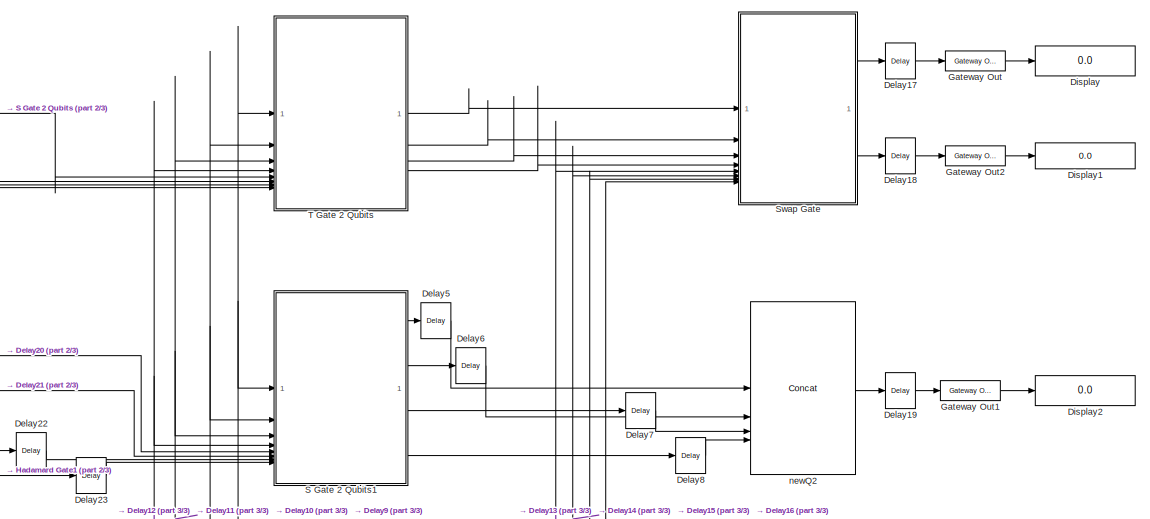
[diagram: root canvas - part 1/3, middle right region]
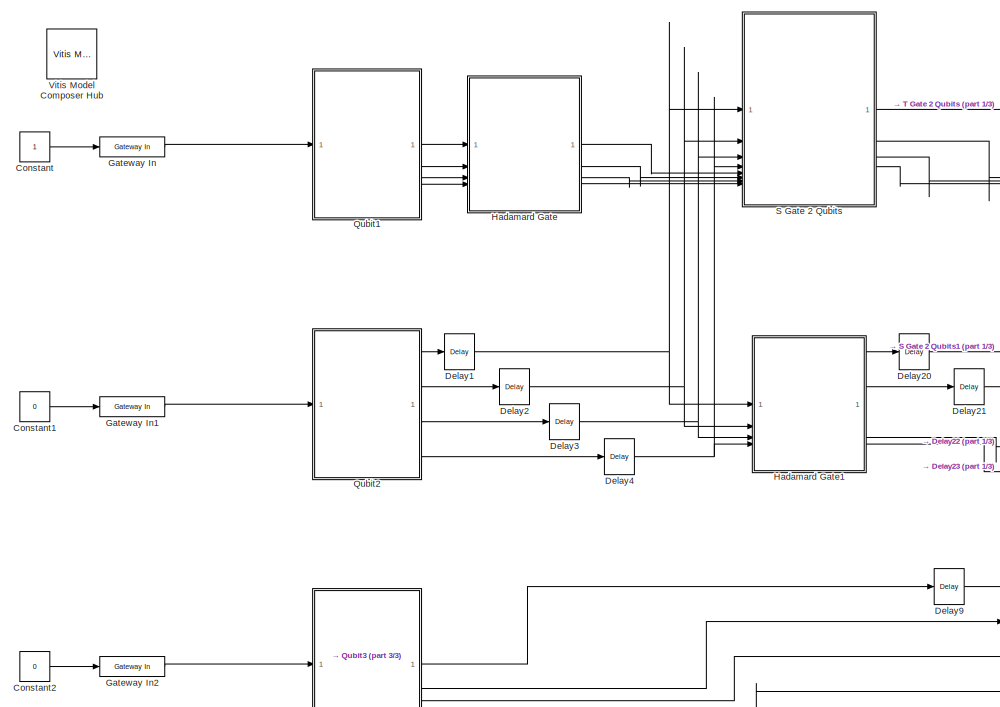
[diagram: root canvas - part 2/3, left side, full height]
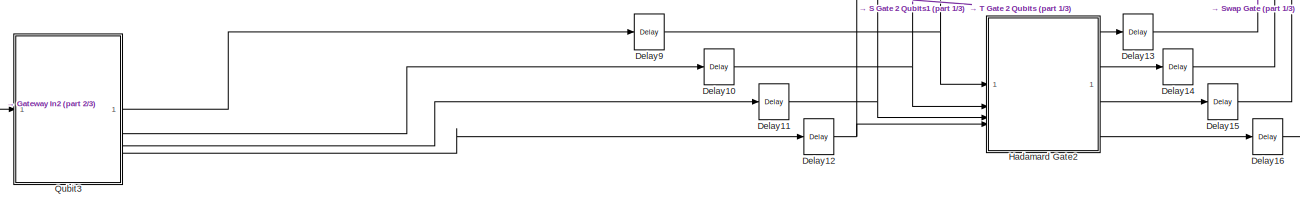
[diagram: root canvas - part 3/3, bottom center region]
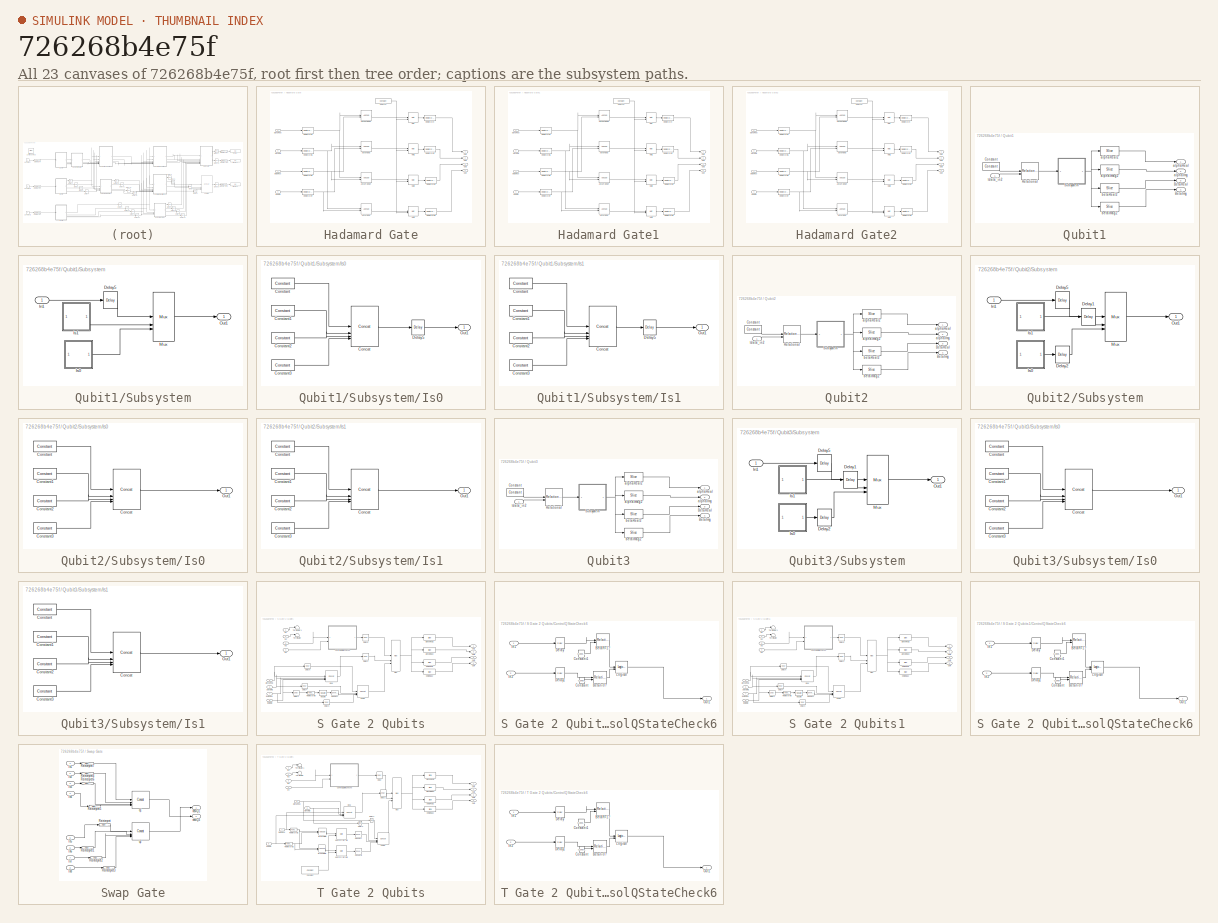
[diagram: thumbnail index - all 23 canvases of the model, root first then tree order]
MODEL slx_726268b4e75f
KIND model
CONFIG AbsTol = auto
CONFIG EnableMultiTasking = off
CONFIG FixedStep = 0.01
CONFIG MaxStep = auto
CONFIG MinStep = auto
CONFIG RelTol = 1e-3
CONFIG SampleTimeConstraint = Unconstrained
CONFIG SolverName = VariableStepAuto
CONFIG StartTime = 0.0
CONFIG StopTime = 30
BLOCK [Constant] Constant
BLOCK [Constant] Constant1
  Value = 0
BLOCK [Constant] Constant2
  Value = 0
BLOCK [Reference] Delay1  REF=hdlBasic/Delay
  SourceBlock = hdlBasic/Delay
  SourceType = Delay Block
BLOCK [Reference] Delay10  REF=hdlBasic/Delay
  SourceBlock = hdlBasic/Delay
  SourceType = Delay Block
BLOCK [Reference] Delay11  REF=hdlBasic/Delay
  SourceBlock = hdlBasic/Delay
  SourceType = Delay Block
BLOCK [Reference] Delay12  REF=hdlBasic/Delay
  SourceBlock = hdlBasic/Delay
  SourceType = Delay Block
BLOCK [Reference] Delay13  REF=hdlBasic/Delay
  SourceBlock = hdlBasic/Delay
  SourceType = Delay Block
BLOCK [Reference] Delay14  REF=hdlBasic/Delay
  SourceBlock = hdlBasic/Delay
  SourceType = Delay Block
BLOCK [Reference] Delay15  REF=hdlBasic/Delay
  SourceBlock = hdlBasic/Delay
  SourceType = Delay Block
BLOCK [Reference] Delay16  REF=hdlBasic/Delay
  SourceBlock = hdlBasic/Delay
  SourceType = Delay Block
BLOCK [Reference] Delay17  REF=hdlBasic/Delay
  SourceBlock = hdlBasic/Delay
  SourceType = Delay Block
BLOCK [Reference] Delay18  REF=hdlBasic/Delay
  SourceBlock = hdlBasic/Delay
  SourceType = Delay Block
BLOCK [Reference] Delay19  REF=hdlBasic/Delay
  SourceBlock = hdlBasic/Delay
  SourceType = Delay Block
BLOCK [Reference] Delay2  REF=hdlBasic/Delay
  SourceBlock = hdlBasic/Delay
  SourceType = Delay Block
BLOCK [Reference] Delay20  REF=hdlBasic/Delay
  SourceBlock = hdlBasic/Delay
  SourceType = Delay Block
BLOCK [Reference] Delay21  REF=hdlBasic/Delay
  SourceBlock = hdlBasic/Delay
  SourceType = Delay Block
BLOCK [Reference] Delay22  REF=hdlBasic/Delay
  SourceBlock = hdlBasic/Delay
  SourceType = Delay Block
BLOCK [Reference] Delay23  REF=hdlBasic/Delay
  SourceBlock = hdlBasic/Delay
  SourceType = Delay Block
BLOCK [Reference] Delay3  REF=hdlBasic/Delay
  SourceBlock = hdlBasic/Delay
  SourceType = Delay Block
BLOCK [Reference] Delay4  REF=hdlBasic/Delay
  SourceBlock = hdlBasic/Delay
  SourceType = Delay Block
BLOCK [Reference] Delay5  REF=hdlBasic/Delay
  SourceBlock = hdlBasic/Delay
  SourceType = Delay Block
BLOCK [Reference] Delay6  REF=hdlBasic/Delay
  SourceBlock = hdlBasic/Delay
  SourceType = Delay Block
BLOCK [Reference] Delay7  REF=hdlBasic/Delay
  SourceBlock = hdlBasic/Delay
  SourceType = Delay Block
BLOCK [Reference] Delay8  REF=hdlBasic/Delay
  SourceBlock = hdlBasic/Delay
  SourceType = Delay Block
BLOCK [Reference] Delay9  REF=hdlBasic/Delay
  SourceBlock = hdlBasic/Delay
  SourceType = Delay Block
BLOCK [Display] Display
  Decimation = 1
  Format = long
BLOCK [Display] Display1
  Decimation = 1
  Format = long
BLOCK [Display] Display2
  Decimation = 1
  Format = long
BLOCK [Reference] Gateway In  REF=hdlBasic/Gateway In
  SourceBlock = hdlBasic/Gateway In
  SourceType = Gateway In Block
BLOCK [Reference] Gateway In1  REF=hdlBasic/Gateway In
  SourceBlock = hdlBasic/Gateway In
  SourceType = Gateway In Block
BLOCK [Reference] Gateway In2  REF=hdlBasic/Gateway In
  SourceBlock = hdlBasic/Gateway In
  SourceType = Gateway In Block
BLOCK [Reference] Gateway Out  REF=hdlBasic/Gateway Out
  SourceBlock = hdlBasic/Gateway Out
  SourceType = Gateway Out Block
BLOCK [Reference] Gateway Out1  REF=hdlBasic/Gateway Out
  SourceBlock = hdlBasic/Gateway Out
  SourceType = Gateway Out Block
BLOCK [Reference] Gateway Out2  REF=hdlBasic/Gateway Out
  SourceBlock = hdlBasic/Gateway Out
  SourceType = Gateway Out Block
BLOCK [SubSystem] Hadamard Gate
BLOCK [Reference] Hadamard Gate/1//sqrt(2)  REF=hdlBasic/Constant
  SourceBlock = hdlBasic/Constant
  SourceType = Constant Block Block
BLOCK [Reference] Hadamard Gate/AlphaI+BetaI  REF=hdlBasic/AddSub
  SourceBlock = hdlBasic/AddSub
  SourceType = Adder/Subtracter Block
BLOCK [Reference] Hadamard Gate/AlphaI-BetaI  REF=hdlBasic/AddSub
  SourceBlock = hdlBasic/AddSub
  SourceType = Adder/Subtracter Block
BLOCK [Reference] Hadamard Gate/AlphaR+BetaR  REF=hdlBasic/AddSub
  SourceBlock = hdlBasic/AddSub
  SourceType = Adder/Subtracter Block
BLOCK [Reference] Hadamard Gate/AlphaR-BetaR  REF=hdlBasic/AddSub
  SourceBlock = hdlBasic/AddSub
  SourceType = Adder/Subtracter Block
BLOCK [Inport] Hadamard Gate/BetaImg
  Port = 4
BLOCK [Inport] Hadamard Gate/BetaReal
  Port = 3
BLOCK [Reference] Hadamard Gate/Mult  REF=hdlBasic/Mult
  SourceBlock = hdlBasic/Mult
  SourceType = Multiplier Block
BLOCK [Reference] Hadamard Gate/Mult1  REF=hdlBasic/Mult
  SourceBlock = hdlBasic/Mult
  SourceType = Multiplier Block
BLOCK [Reference] Hadamard Gate/Mult2  REF=hdlBasic/Mult
  SourceBlock = hdlBasic/Mult
  SourceType = Multiplier Block
BLOCK [Reference] Hadamard Gate/Mult3  REF=hdlBasic/Mult
  SourceBlock = hdlBasic/Mult
  SourceType = Multiplier Block
BLOCK [Outport] Hadamard Gate/Out1
BLOCK [Outport] Hadamard Gate/Out2
  Port = 2
BLOCK [Outport] Hadamard Gate/Out3
  Port = 3
BLOCK [Outport] Hadamard Gate/Out4
  Port = 4
BLOCK [Reference] Hadamard Gate/Reinterpret  REF=hdlBasic/Reinterpret
  SourceBlock = hdlBasic/Reinterpret
  SourceType = Type Reinterpreter Block
BLOCK [Reference] Hadamard Gate/Reinterpret1  REF=hdlBasic/Reinterpret
  SourceBlock = hdlBasic/Reinterpret
  SourceType = Type Reinterpreter Block
BLOCK [Reference] Hadamard Gate/Reinterpret2  REF=hdlBasic/Reinterpret
  SourceBlock = hdlBasic/Reinterpret
  SourceType = Type Reinterpreter Block
BLOCK [Reference] Hadamard Gate/Reinterpret3  REF=hdlBasic/Reinterpret
  SourceBlock = hdlBasic/Reinterpret
  SourceType = Type Reinterpreter Block
BLOCK [Reference] Hadamard Gate/Reinterpret4  REF=hdlBasic/Reinterpret
  SourceBlock = hdlBasic/Reinterpret
  SourceType = Type Reinterpreter Block
BLOCK [Reference] Hadamard Gate/Reinterpret5  REF=hdlBasic/Reinterpret
  SourceBlock = hdlBasic/Reinterpret
  SourceType = Type Reinterpreter Block
BLOCK [Reference] Hadamard Gate/Reinterpret6  REF=hdlBasic/Reinterpret
  SourceBlock = hdlBasic/Reinterpret
  SourceType = Type Reinterpreter Block
BLOCK [Reference] Hadamard Gate/Reinterpret7  REF=hdlBasic/Reinterpret
  SourceBlock = hdlBasic/Reinterpret
  SourceType = Type Reinterpreter Block
BLOCK [Inport] Hadamard Gate/alphaImg
  Port = 2
BLOCK [Inport] Hadamard Gate/alphaReal
BLOCK [SubSystem] Hadamard Gate1
BLOCK [Reference] Hadamard Gate1/1//sqrt(2)  REF=hdlBasic/Constant
  SourceBlock = hdlBasic/Constant
  SourceType = Constant Block Block
BLOCK [Reference] Hadamard Gate1/AlphaI+BetaI  REF=hdlBasic/AddSub
  SourceBlock = hdlBasic/AddSub
  SourceType = Adder/Subtracter Block
BLOCK [Reference] Hadamard Gate1/AlphaI-BetaI  REF=hdlBasic/AddSub
  SourceBlock = hdlBasic/AddSub
  SourceType = Adder/Subtracter Block
BLOCK [Reference] Hadamard Gate1/AlphaR+BetaR  REF=hdlBasic/AddSub
  SourceBlock = hdlBasic/AddSub
  SourceType = Adder/Subtracter Block
BLOCK [Reference] Hadamard Gate1/AlphaR-BetaR  REF=hdlBasic/AddSub
  SourceBlock = hdlBasic/AddSub
  SourceType = Adder/Subtracter Block
BLOCK [Inport] Hadamard Gate1/BetaImg
  Port = 4
BLOCK [Inport] Hadamard Gate1/BetaReal
  Port = 3
BLOCK [Reference] Hadamard Gate1/Mult  REF=hdlBasic/Mult
  SourceBlock = hdlBasic/Mult
  SourceType = Multiplier Block
BLOCK [Reference] Hadamard Gate1/Mult1  REF=hdlBasic/Mult
  SourceBlock = hdlBasic/Mult
  SourceType = Multiplier Block
BLOCK [Reference] Hadamard Gate1/Mult2  REF=hdlBasic/Mult
  SourceBlock = hdlBasic/Mult
  SourceType = Multiplier Block
BLOCK [Reference] Hadamard Gate1/Mult3  REF=hdlBasic/Mult
  SourceBlock = hdlBasic/Mult
  SourceType = Multiplier Block
BLOCK [Outport] Hadamard Gate1/Out1
BLOCK [Outport] Hadamard Gate1/Out2
  Port = 2
BLOCK [Outport] Hadamard Gate1/Out3
  Port = 3
BLOCK [Outport] Hadamard Gate1/Out4
  Port = 4
BLOCK [Reference] Hadamard Gate1/Reinterpret  REF=hdlBasic/Reinterpret
  SourceBlock = hdlBasic/Reinterpret
  SourceType = Type Reinterpreter Block
BLOCK [Reference] Hadamard Gate1/Reinterpret1  REF=hdlBasic/Reinterpret
  SourceBlock = hdlBasic/Reinterpret
  SourceType = Type Reinterpreter Block
BLOCK [Reference] Hadamard Gate1/Reinterpret2  REF=hdlBasic/Reinterpret
  SourceBlock = hdlBasic/Reinterpret
  SourceType = Type Reinterpreter Block
BLOCK [Reference] Hadamard Gate1/Reinterpret3  REF=hdlBasic/Reinterpret
  SourceBlock = hdlBasic/Reinterpret
  SourceType = Type Reinterpreter Block
BLOCK [Reference] Hadamard Gate1/Reinterpret4  REF=hdlBasic/Reinterpret
  SourceBlock = hdlBasic/Reinterpret
  SourceType = Type Reinterpreter Block
BLOCK [Reference] Hadamard Gate1/Reinterpret5  REF=hdlBasic/Reinterpret
  SourceBlock = hdlBasic/Reinterpret
  SourceType = Type Reinterpreter Block
BLOCK [Reference] Hadamard Gate1/Reinterpret6  REF=hdlBasic/Reinterpret
  SourceBlock = hdlBasic/Reinterpret
  SourceType = Type Reinterpreter Block
BLOCK [Reference] Hadamard Gate1/Reinterpret7  REF=hdlBasic/Reinterpret
  SourceBlock = hdlBasic/Reinterpret
  SourceType = Type Reinterpreter Block
BLOCK [Inport] Hadamard Gate1/alphaImg
  Port = 2
BLOCK [Inport] Hadamard Gate1/alphaReal
BLOCK [SubSystem] Hadamard Gate2
BLOCK [Reference] Hadamard Gate2/1//sqrt(2)  REF=hdlBasic/Constant
  SourceBlock = hdlBasic/Constant
  SourceType = Constant Block Block
BLOCK [Reference] Hadamard Gate2/AlphaI+BetaI  REF=hdlBasic/AddSub
  SourceBlock = hdlBasic/AddSub
  SourceType = Adder/Subtracter Block
BLOCK [Reference] Hadamard Gate2/AlphaI-BetaI  REF=hdlBasic/AddSub
  SourceBlock = hdlBasic/AddSub
  SourceType = Adder/Subtracter Block
BLOCK [Reference] Hadamard Gate2/AlphaR+BetaR  REF=hdlBasic/AddSub
  SourceBlock = hdlBasic/AddSub
  SourceType = Adder/Subtracter Block
BLOCK [Reference] Hadamard Gate2/AlphaR-BetaR  REF=hdlBasic/AddSub
  SourceBlock = hdlBasic/AddSub
  SourceType = Adder/Subtracter Block
BLOCK [Inport] Hadamard Gate2/BetaImg
  Port = 4
BLOCK [Inport] Hadamard Gate2/BetaReal
  Port = 3
BLOCK [Reference] Hadamard Gate2/Mult  REF=hdlBasic/Mult
  SourceBlock = hdlBasic/Mult
  SourceType = Multiplier Block
BLOCK [Reference] Hadamard Gate2/Mult1  REF=hdlBasic/Mult
  SourceBlock = hdlBasic/Mult
  SourceType = Multiplier Block
BLOCK [Reference] Hadamard Gate2/Mult2  REF=hdlBasic/Mult
  SourceBlock = hdlBasic/Mult
  SourceType = Multiplier Block
BLOCK [Reference] Hadamard Gate2/Mult3  REF=hdlBasic/Mult
  SourceBlock = hdlBasic/Mult
  SourceType = Multiplier Block
BLOCK [Outport] Hadamard Gate2/Out1
BLOCK [Outport] Hadamard Gate2/Out2
  Port = 2
BLOCK [Outport] Hadamard Gate2/Out3
  Port = 3
BLOCK [Outport] Hadamard Gate2/Out4
  Port = 4
BLOCK [Reference] Hadamard Gate2/Reinterpret  REF=hdlBasic/Reinterpret
  SourceBlock = hdlBasic/Reinterpret
  SourceType = Type Reinterpreter Block
BLOCK [Reference] Hadamard Gate2/Reinterpret1  REF=hdlBasic/Reinterpret
  SourceBlock = hdlBasic/Reinterpret
  SourceType = Type Reinterpreter Block
BLOCK [Reference] Hadamard Gate2/Reinterpret2  REF=hdlBasic/Reinterpret
  SourceBlock = hdlBasic/Reinterpret
  SourceType = Type Reinterpreter Block
BLOCK [Reference] Hadamard Gate2/Reinterpret3  REF=hdlBasic/Reinterpret
  SourceBlock = hdlBasic/Reinterpret
  SourceType = Type Reinterpreter Block
BLOCK [Reference] Hadamard Gate2/Reinterpret4  REF=hdlBasic/Reinterpret
  SourceBlock = hdlBasic/Reinterpret
  SourceType = Type Reinterpreter Block
BLOCK [Reference] Hadamard Gate2/Reinterpret5  REF=hdlBasic/Reinterpret
  SourceBlock = hdlBasic/Reinterpret
  SourceType = Type Reinterpreter Block
BLOCK [Reference] Hadamard Gate2/Reinterpret6  REF=hdlBasic/Reinterpret
  SourceBlock = hdlBasic/Reinterpret
  SourceType = Type Reinterpreter Block
BLOCK [Reference] Hadamard Gate2/Reinterpret7  REF=hdlBasic/Reinterpret
  SourceBlock = hdlBasic/Reinterpret
  SourceType = Type Reinterpreter Block
BLOCK [Inport] Hadamard Gate2/alphaImg
  Port = 2
BLOCK [Inport] Hadamard Gate2/alphaReal
BLOCK [SubSystem] Qubit1
BLOCK [Outport] Qubit1/BetaImg
  Port = 4
BLOCK [Outport] Qubit1/BetaReal
  Port = 3
BLOCK [Reference] Qubit1/Constant  REF=hdlBasic/Constant
  SourceBlock = hdlBasic/Constant
  SourceType = Constant Block Block
BLOCK [Reference] Qubit1/Relational  REF=hdlBasic/Relational
  SourceBlock = hdlBasic/Relational
  SourceType = Arithmetic Relational Operator Block
BLOCK [SubSystem] Qubit1/Subsystem
BLOCK [Reference] Qubit1/Subsystem/Delay5  REF=hdlBasic/Delay
  SourceBlock = hdlBasic/Delay
  SourceType = Delay Block
BLOCK [Inport] Qubit1/Subsystem/In1
BLOCK [SubSystem] Qubit1/Subsystem/Is0
BLOCK [Reference] Qubit1/Subsystem/Is0/Concat  REF=hdlBasic/Concat
  SourceBlock = hdlBasic/Concat
  SourceType = Bus Concatenator Block
BLOCK [Reference] Qubit1/Subsystem/Is0/Constant  REF=hdlBasic/Constant
  SourceBlock = hdlBasic/Constant
  SourceType = Constant Block Block
BLOCK [Reference] Qubit1/Subsystem/Is0/Constant1  REF=hdlBasic/Constant
  SourceBlock = hdlBasic/Constant
  SourceType = Constant Block Block
BLOCK [Reference] Qubit1/Subsystem/Is0/Constant2  REF=hdlBasic/Constant
  SourceBlock = hdlBasic/Constant
  SourceType = Constant Block Block
BLOCK [Reference] Qubit1/Subsystem/Is0/Constant3  REF=hdlBasic/Constant
  SourceBlock = hdlBasic/Constant
  SourceType = Constant Block Block
BLOCK [Reference] Qubit1/Subsystem/Is0/Delay5  REF=hdlBasic/Delay
  SourceBlock = hdlBasic/Delay
  SourceType = Delay Block
BLOCK [Outport] Qubit1/Subsystem/Is0/Out1
BLOCK [SubSystem] Qubit1/Subsystem/Is1
BLOCK [Reference] Qubit1/Subsystem/Is1/Concat  REF=hdlBasic/Concat
  SourceBlock = hdlBasic/Concat
  SourceType = Bus Concatenator Block
BLOCK [Reference] Qubit1/Subsystem/Is1/Constant  REF=hdlBasic/Constant
  SourceBlock = hdlBasic/Constant
  SourceType = Constant Block Block
BLOCK [Reference] Qubit1/Subsystem/Is1/Constant1  REF=hdlBasic/Constant
  SourceBlock = hdlBasic/Constant
  SourceType = Constant Block Block
BLOCK [Reference] Qubit1/Subsystem/Is1/Constant2  REF=hdlBasic/Constant
  SourceBlock = hdlBasic/Constant
  SourceType = Constant Block Block
BLOCK [Reference] Qubit1/Subsystem/Is1/Constant3  REF=hdlBasic/Constant
  SourceBlock = hdlBasic/Constant
  SourceType = Constant Block Block
BLOCK [Reference] Qubit1/Subsystem/Is1/Delay5  REF=hdlBasic/Delay
  SourceBlock = hdlBasic/Delay
  SourceType = Delay Block
BLOCK [Outport] Qubit1/Subsystem/Is1/Out1
BLOCK [Reference] Qubit1/Subsystem/Mux  REF=hdlBasic/Mux
  SourceBlock = hdlBasic/Mux
  SourceType = Bus Multiplexer Block
BLOCK [Outport] Qubit1/Subsystem/Out1
BLOCK [Reference] Qubit1/alphaImag2  REF=hdlBasic/Slice
  SourceBlock = hdlBasic/Slice
  SourceType = Bit Slice Extractor Block
BLOCK [Outport] Qubit1/alphaImg
  Port = 2
BLOCK [Outport] Qubit1/alphaReal
BLOCK [Reference] Qubit1/alphaReal2  REF=hdlBasic/Slice
  SourceBlock = hdlBasic/Slice
  SourceType = Bit Slice Extractor Block
BLOCK [Reference] Qubit1/betaImag2  REF=hdlBasic/Slice
  SourceBlock = hdlBasic/Slice
  SourceType = Bit Slice Extractor Block
BLOCK [Reference] Qubit1/betaReal2  REF=hdlBasic/Slice
  SourceBlock = hdlBasic/Slice
  SourceType = Bit Slice Extractor Block
BLOCK [Inport] Qubit1/tdata_in2
BLOCK [SubSystem] Qubit2
BLOCK [Outport] Qubit2/BetaImg
  Port = 4
BLOCK [Outport] Qubit2/BetaReal
  Port = 3
BLOCK [Reference] Qubit2/Constant  REF=hdlBasic/Constant
  SourceBlock = hdlBasic/Constant
  SourceType = Constant Block Block
BLOCK [Reference] Qubit2/Relational  REF=hdlBasic/Relational
  SourceBlock = hdlBasic/Relational
  SourceType = Arithmetic Relational Operator Block
BLOCK [SubSystem] Qubit2/Subsystem
BLOCK [Reference] Qubit2/Subsystem/Delay1  REF=hdlBasic/Delay
  SourceBlock = hdlBasic/Delay
  SourceType = Delay Block
BLOCK [Reference] Qubit2/Subsystem/Delay2  REF=hdlBasic/Delay
  SourceBlock = hdlBasic/Delay
  SourceType = Delay Block
BLOCK [Reference] Qubit2/Subsystem/Delay5  REF=hdlBasic/Delay
  SourceBlock = hdlBasic/Delay
  SourceType = Delay Block
BLOCK [Inport] Qubit2/Subsystem/In1
BLOCK [SubSystem] Qubit2/Subsystem/Is0
BLOCK [Reference] Qubit2/Subsystem/Is0/Concat  REF=hdlBasic/Concat
  SourceBlock = hdlBasic/Concat
  SourceType = Bus Concatenator Block
BLOCK [Reference] Qubit2/Subsystem/Is0/Constant  REF=hdlBasic/Constant
  SourceBlock = hdlBasic/Constant
  SourceType = Constant Block Block
BLOCK [Reference] Qubit2/Subsystem/Is0/Constant1  REF=hdlBasic/Constant
  SourceBlock = hdlBasic/Constant
  SourceType = Constant Block Block
BLOCK [Reference] Qubit2/Subsystem/Is0/Constant2  REF=hdlBasic/Constant
  SourceBlock = hdlBasic/Constant
  SourceType = Constant Block Block
BLOCK [Reference] Qubit2/Subsystem/Is0/Constant3  REF=hdlBasic/Constant
  SourceBlock = hdlBasic/Constant
  SourceType = Constant Block Block
BLOCK [Outport] Qubit2/Subsystem/Is0/Out1
BLOCK [SubSystem] Qubit2/Subsystem/Is1
BLOCK [Reference] Qubit2/Subsystem/Is1/Concat  REF=hdlBasic/Concat
  SourceBlock = hdlBasic/Concat
  SourceType = Bus Concatenator Block
BLOCK [Reference] Qubit2/Subsystem/Is1/Constant  REF=hdlBasic/Constant
  SourceBlock = hdlBasic/Constant
  SourceType = Constant Block Block
BLOCK [Reference] Qubit2/Subsystem/Is1/Constant1  REF=hdlBasic/Constant
  SourceBlock = hdlBasic/Constant
  SourceType = Constant Block Block
BLOCK [Reference] Qubit2/Subsystem/Is1/Constant2  REF=hdlBasic/Constant
  SourceBlock = hdlBasic/Constant
  SourceType = Constant Block Block
BLOCK [Reference] Qubit2/Subsystem/Is1/Constant3  REF=hdlBasic/Constant
  SourceBlock = hdlBasic/Constant
  SourceType = Constant Block Block
BLOCK [Outport] Qubit2/Subsystem/Is1/Out1
BLOCK [Reference] Qubit2/Subsystem/Mux  REF=hdlBasic/Mux
  SourceBlock = hdlBasic/Mux
  SourceType = Bus Multiplexer Block
BLOCK [Outport] Qubit2/Subsystem/Out1
BLOCK [Reference] Qubit2/alphaImag2  REF=hdlBasic/Slice
  SourceBlock = hdlBasic/Slice
  SourceType = Bit Slice Extractor Block
BLOCK [Outport] Qubit2/alphaImg
  Port = 2
BLOCK [Outport] Qubit2/alphaReal
BLOCK [Reference] Qubit2/alphaReal2  REF=hdlBasic/Slice
  SourceBlock = hdlBasic/Slice
  SourceType = Bit Slice Extractor Block
BLOCK [Reference] Qubit2/betaImag2  REF=hdlBasic/Slice
  SourceBlock = hdlBasic/Slice
  SourceType = Bit Slice Extractor Block
BLOCK [Reference] Qubit2/betaReal2  REF=hdlBasic/Slice
  SourceBlock = hdlBasic/Slice
  SourceType = Bit Slice Extractor Block
BLOCK [Inport] Qubit2/tdata_in2
BLOCK [SubSystem] Qubit3
BLOCK [Outport] Qubit3/BetaImg
  Port = 4
BLOCK [Outport] Qubit3/BetaReal
  Port = 3
BLOCK [Reference] Qubit3/Constant  REF=hdlBasic/Constant
  SourceBlock = hdlBasic/Constant
  SourceType = Constant Block Block
BLOCK [Reference] Qubit3/Relational  REF=hdlBasic/Relational
  SourceBlock = hdlBasic/Relational
  SourceType = Arithmetic Relational Operator Block
BLOCK [SubSystem] Qubit3/Subsystem
BLOCK [Reference] Qubit3/Subsystem/Delay1  REF=hdlBasic/Delay
  SourceBlock = hdlBasic/Delay
  SourceType = Delay Block
BLOCK [Reference] Qubit3/Subsystem/Delay2  REF=hdlBasic/Delay
  SourceBlock = hdlBasic/Delay
  SourceType = Delay Block
BLOCK [Reference] Qubit3/Subsystem/Delay5  REF=hdlBasic/Delay
  SourceBlock = hdlBasic/Delay
  SourceType = Delay Block
BLOCK [Inport] Qubit3/Subsystem/In1
BLOCK [SubSystem] Qubit3/Subsystem/Is0
BLOCK [Reference] Qubit3/Subsystem/Is0/Concat  REF=hdlBasic/Concat
  SourceBlock = hdlBasic/Concat
  SourceType = Bus Concatenator Block
BLOCK [Reference] Qubit3/Subsystem/Is0/Constant  REF=hdlBasic/Constant
  SourceBlock = hdlBasic/Constant
  SourceType = Constant Block Block
BLOCK [Reference] Qubit3/Subsystem/Is0/Constant1  REF=hdlBasic/Constant
  SourceBlock = hdlBasic/Constant
  SourceType = Constant Block Block
BLOCK [Reference] Qubit3/Subsystem/Is0/Constant2  REF=hdlBasic/Constant
  SourceBlock = hdlBasic/Constant
  SourceType = Constant Block Block
BLOCK [Reference] Qubit3/Subsystem/Is0/Constant3  REF=hdlBasic/Constant
  SourceBlock = hdlBasic/Constant
  SourceType = Constant Block Block
BLOCK [Outport] Qubit3/Subsystem/Is0/Out1
BLOCK [SubSystem] Qubit3/Subsystem/Is1
BLOCK [Reference] Qubit3/Subsystem/Is1/Concat  REF=hdlBasic/Concat
  SourceBlock = hdlBasic/Concat
  SourceType = Bus Concatenator Block
BLOCK [Reference] Qubit3/Subsystem/Is1/Constant  REF=hdlBasic/Constant
  SourceBlock = hdlBasic/Constant
  SourceType = Constant Block Block
BLOCK [Reference] Qubit3/Subsystem/Is1/Constant1  REF=hdlBasic/Constant
  SourceBlock = hdlBasic/Constant
  SourceType = Constant Block Block
BLOCK [Reference] Qubit3/Subsystem/Is1/Constant2  REF=hdlBasic/Constant
  SourceBlock = hdlBasic/Constant
  SourceType = Constant Block Block
BLOCK [Reference] Qubit3/Subsystem/Is1/Constant3  REF=hdlBasic/Constant
  SourceBlock = hdlBasic/Constant
  SourceType = Constant Block Block
BLOCK [Outport] Qubit3/Subsystem/Is1/Out1
BLOCK [Reference] Qubit3/Subsystem/Mux  REF=hdlBasic/Mux
  SourceBlock = hdlBasic/Mux
  SourceType = Bus Multiplexer Block
BLOCK [Outport] Qubit3/Subsystem/Out1
BLOCK [Reference] Qubit3/alphaImag2  REF=hdlBasic/Slice
  SourceBlock = hdlBasic/Slice
  SourceType = Bit Slice Extractor Block
BLOCK [Outport] Qubit3/alphaImg
  Port = 2
BLOCK [Outport] Qubit3/alphaReal
BLOCK [Reference] Qubit3/alphaReal2  REF=hdlBasic/Slice
  SourceBlock = hdlBasic/Slice
  SourceType = Bit Slice Extractor Block
BLOCK [Reference] Qubit3/betaImag2  REF=hdlBasic/Slice
  SourceBlock = hdlBasic/Slice
  SourceType = Bit Slice Extractor Block
BLOCK [Reference] Qubit3/betaReal2  REF=hdlBasic/Slice
  SourceBlock = hdlBasic/Slice
  SourceType = Bit Slice Extractor Block
BLOCK [Inport] Qubit3/tdata_in2
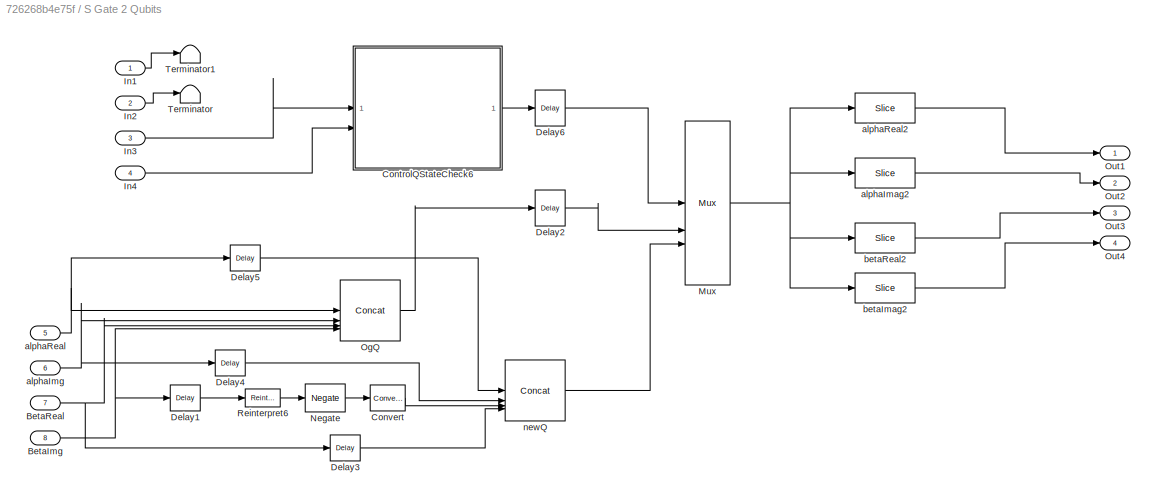
BLOCK [SubSystem] S Gate 2 Qubits
BLOCK [Inport] S Gate 2 Qubits/BetaImg
  Port = 8
BLOCK [Inport] S Gate 2 Qubits/BetaReal
  Port = 7
BLOCK [SubSystem] S Gate 2 Qubits/ControlQStateCheck6
BLOCK [Reference] S Gate 2 Qubits/ControlQStateCheck6/BetaI=0?  REF=hdlBasic/Relational
  SourceBlock = hdlBasic/Relational
  SourceType = Arithmetic Relational Operator Block
BLOCK [Reference] S Gate 2 Qubits/ControlQStateCheck6/BetaR=1?  REF=hdlBasic/Relational
  SourceBlock = hdlBasic/Relational
  SourceType = Arithmetic Relational Operator Block
BLOCK [Reference] S Gate 2 Qubits/ControlQStateCheck6/Constant  REF=hdlBasic/Constant
  SourceBlock = hdlBasic/Constant
  SourceType = Constant Block Block
BLOCK [Reference] S Gate 2 Qubits/ControlQStateCheck6/Constant1  REF=hdlBasic/Constant
  SourceBlock = hdlBasic/Constant
  SourceType = Constant Block Block
BLOCK [Reference] S Gate 2 Qubits/ControlQStateCheck6/Delay  REF=hdlBasic/Delay
  SourceBlock = hdlBasic/Delay
  SourceType = Delay Block
BLOCK [Reference] S Gate 2 Qubits/ControlQStateCheck6/Delay1  REF=hdlBasic/Delay
  SourceBlock = hdlBasic/Delay
  SourceType = Delay Block
BLOCK [Inport] S Gate 2 Qubits/ControlQStateCheck6/In1
BLOCK [Inport] S Gate 2 Qubits/ControlQStateCheck6/In2
  Port = 2
BLOCK [Reference] S Gate 2 Qubits/ControlQStateCheck6/Logical  REF=hdlBasic/Logical
  SourceBlock = hdlBasic/Logical
  SourceType = Logical Block Block
BLOCK [Outport] S Gate 2 Qubits/ControlQStateCheck6/Out1
BLOCK [Reference] S Gate 2 Qubits/Convert  REF=hdlBasic/Convert
  SourceBlock = hdlBasic/Convert
  SourceType = Type Converter Block
BLOCK [Reference] S Gate 2 Qubits/Delay1  REF=hdlBasic/Delay
  SourceBlock = hdlBasic/Delay
  SourceType = Delay Block
BLOCK [Reference] S Gate 2 Qubits/Delay2  REF=hdlBasic/Delay
  SourceBlock = hdlBasic/Delay
  SourceType = Delay Block
BLOCK [Reference] S Gate 2 Qubits/Delay3  REF=hdlBasic/Delay
  SourceBlock = hdlBasic/Delay
  SourceType = Delay Block
BLOCK [Reference] S Gate 2 Qubits/Delay4  REF=hdlBasic/Delay
  SourceBlock = hdlBasic/Delay
  SourceType = Delay Block
BLOCK [Reference] S Gate 2 Qubits/Delay5  REF=hdlBasic/Delay
  SourceBlock = hdlBasic/Delay
  SourceType = Delay Block
BLOCK [Reference] S Gate 2 Qubits/Delay6  REF=hdlBasic/Delay
  SourceBlock = hdlBasic/Delay
  SourceType = Delay Block
BLOCK [Inport] S Gate 2 Qubits/In1
BLOCK [Inport] S Gate 2 Qubits/In2
  Port = 2
BLOCK [Inport] S Gate 2 Qubits/In3
  Port = 3
BLOCK [Inport] S Gate 2 Qubits/In4
  Port = 4
BLOCK [Reference] S Gate 2 Qubits/Mux  REF=hdlBasic/Mux
  SourceBlock = hdlBasic/Mux
  SourceType = Bus Multiplexer Block
BLOCK [Reference] S Gate 2 Qubits/Negate  REF=hdlBasic/Negate
  SourceBlock = hdlBasic/Negate
  SourceType = Negate Block Block
BLOCK [Reference] S Gate 2 Qubits/OgQ  REF=hdlBasic/Concat
  SourceBlock = hdlBasic/Concat
  SourceType = Bus Concatenator Block
BLOCK [Outport] S Gate 2 Qubits/Out1
BLOCK [Outport] S Gate 2 Qubits/Out2
  Port = 2
BLOCK [Outport] S Gate 2 Qubits/Out3
  Port = 3
BLOCK [Outport] S Gate 2 Qubits/Out4
  Port = 4
BLOCK [Reference] S Gate 2 Qubits/Reinterpret6  REF=hdlBasic/Reinterpret
  SourceBlock = hdlBasic/Reinterpret
  SourceType = Type Reinterpreter Block
BLOCK [Terminator] S Gate 2 Qubits/Terminator
BLOCK [Terminator] S Gate 2 Qubits/Terminator1
BLOCK [Reference] S Gate 2 Qubits/alphaImag2  REF=hdlBasic/Slice
  SourceBlock = hdlBasic/Slice
  SourceType = Bit Slice Extractor Block
BLOCK [Inport] S Gate 2 Qubits/alphaImg
  Port = 6
BLOCK [Inport] S Gate 2 Qubits/alphaReal
  Port = 5
BLOCK [Reference] S Gate 2 Qubits/alphaReal2  REF=hdlBasic/Slice
  SourceBlock = hdlBasic/Slice
  SourceType = Bit Slice Extractor Block
BLOCK [Reference] S Gate 2 Qubits/betaImag2  REF=hdlBasic/Slice
  SourceBlock = hdlBasic/Slice
  SourceType = Bit Slice Extractor Block
BLOCK [Reference] S Gate 2 Qubits/betaReal2  REF=hdlBasic/Slice
  SourceBlock = hdlBasic/Slice
  SourceType = Bit Slice Extractor Block
BLOCK [Reference] S Gate 2 Qubits/newQ  REF=hdlBasic/Concat
  SourceBlock = hdlBasic/Concat
  SourceType = Bus Concatenator Block
BLOCK [SubSystem] S Gate 2 Qubits1
BLOCK [Inport] S Gate 2 Qubits1/BetaImg
  Port = 8
BLOCK [Inport] S Gate 2 Qubits1/BetaReal
  Port = 7
BLOCK [SubSystem] S Gate 2 Qubits1/ControlQStateCheck6
BLOCK [Reference] S Gate 2 Qubits1/ControlQStateCheck6/BetaI=0?  REF=hdlBasic/Relational
  SourceBlock = hdlBasic/Relational
  SourceType = Arithmetic Relational Operator Block
BLOCK [Reference] S Gate 2 Qubits1/ControlQStateCheck6/BetaR=1?  REF=hdlBasic/Relational
  SourceBlock = hdlBasic/Relational
  SourceType = Arithmetic Relational Operator Block
BLOCK [Reference] S Gate 2 Qubits1/ControlQStateCheck6/Constant  REF=hdlBasic/Constant
  SourceBlock = hdlBasic/Constant
  SourceType = Constant Block Block
BLOCK [Reference] S Gate 2 Qubits1/ControlQStateCheck6/Constant1  REF=hdlBasic/Constant
  SourceBlock = hdlBasic/Constant
  SourceType = Constant Block Block
BLOCK [Reference] S Gate 2 Qubits1/ControlQStateCheck6/Delay  REF=hdlBasic/Delay
  SourceBlock = hdlBasic/Delay
  SourceType = Delay Block
BLOCK [Reference] S Gate 2 Qubits1/ControlQStateCheck6/Delay1  REF=hdlBasic/Delay
  SourceBlock = hdlBasic/Delay
  SourceType = Delay Block
BLOCK [Inport] S Gate 2 Qubits1/ControlQStateCheck6/In1
BLOCK [Inport] S Gate 2 Qubits1/ControlQStateCheck6/In2
  Port = 2
BLOCK [Reference] S Gate 2 Qubits1/ControlQStateCheck6/Logical  REF=hdlBasic/Logical
  SourceBlock = hdlBasic/Logical
  SourceType = Logical Block Block
BLOCK [Outport] S Gate 2 Qubits1/ControlQStateCheck6/Out1
BLOCK [Reference] S Gate 2 Qubits1/Convert  REF=hdlBasic/Convert
  SourceBlock = hdlBasic/Convert
  SourceType = Type Converter Block
BLOCK [Reference] S Gate 2 Qubits1/Delay1  REF=hdlBasic/Delay
  SourceBlock = hdlBasic/Delay
  SourceType = Delay Block
BLOCK [Reference] S Gate 2 Qubits1/Delay2  REF=hdlBasic/Delay
  SourceBlock = hdlBasic/Delay
  SourceType = Delay Block
BLOCK [Reference] S Gate 2 Qubits1/Delay3  REF=hdlBasic/Delay
  SourceBlock = hdlBasic/Delay
  SourceType = Delay Block
BLOCK [Reference] S Gate 2 Qubits1/Delay4  REF=hdlBasic/Delay
  SourceBlock = hdlBasic/Delay
  SourceType = Delay Block
BLOCK [Reference] S Gate 2 Qubits1/Delay5  REF=hdlBasic/Delay
  SourceBlock = hdlBasic/Delay
  SourceType = Delay Block
BLOCK [Reference] S Gate 2 Qubits1/Delay6  REF=hdlBasic/Delay
  SourceBlock = hdlBasic/Delay
  SourceType = Delay Block
BLOCK [Inport] S Gate 2 Qubits1/In1
BLOCK [Inport] S Gate 2 Qubits1/In2
  Port = 2
BLOCK [Inport] S Gate 2 Qubits1/In3
  Port = 3
BLOCK [Inport] S Gate 2 Qubits1/In4
  Port = 4
BLOCK [Reference] S Gate 2 Qubits1/Mux  REF=hdlBasic/Mux
  SourceBlock = hdlBasic/Mux
  SourceType = Bus Multiplexer Block
BLOCK [Reference] S Gate 2 Qubits1/Negate  REF=hdlBasic/Negate
  SourceBlock = hdlBasic/Negate
  SourceType = Negate Block Block
BLOCK [Reference] S Gate 2 Qubits1/OgQ  REF=hdlBasic/Concat
  SourceBlock = hdlBasic/Concat
  SourceType = Bus Concatenator Block
BLOCK [Outport] S Gate 2 Qubits1/Out1
BLOCK [Outport] S Gate 2 Qubits1/Out2
  Port = 2
BLOCK [Outport] S Gate 2 Qubits1/Out3
  Port = 3
BLOCK [Outport] S Gate 2 Qubits1/Out4
  Port = 4
BLOCK [Reference] S Gate 2 Qubits1/Reinterpret6  REF=hdlBasic/Reinterpret
  SourceBlock = hdlBasic/Reinterpret
  SourceType = Type Reinterpreter Block
BLOCK [Terminator] S Gate 2 Qubits1/Terminator
BLOCK [Terminator] S Gate 2 Qubits1/Terminator1
BLOCK [Reference] S Gate 2 Qubits1/alphaImag2  REF=hdlBasic/Slice
  SourceBlock = hdlBasic/Slice
  SourceType = Bit Slice Extractor Block
BLOCK [Inport] S Gate 2 Qubits1/alphaImg
  Port = 6
BLOCK [Inport] S Gate 2 Qubits1/alphaReal
  Port = 5
BLOCK [Reference] S Gate 2 Qubits1/alphaReal2  REF=hdlBasic/Slice
  SourceBlock = hdlBasic/Slice
  SourceType = Bit Slice Extractor Block
BLOCK [Reference] S Gate 2 Qubits1/betaImag2  REF=hdlBasic/Slice
  SourceBlock = hdlBasic/Slice
  SourceType = Bit Slice Extractor Block
BLOCK [Reference] S Gate 2 Qubits1/betaReal2  REF=hdlBasic/Slice
  SourceBlock = hdlBasic/Slice
  SourceType = Bit Slice Extractor Block
BLOCK [Reference] S Gate 2 Qubits1/newQ  REF=hdlBasic/Concat
  SourceBlock = hdlBasic/Concat
  SourceType = Bus Concatenator Block
BLOCK [SubSystem] Swap Gate
BLOCK [Inport] Swap Gate/In1
BLOCK [Inport] Swap Gate/In2
  Port = 2
BLOCK [Inport] Swap Gate/In3
  Port = 3
BLOCK [Inport] Swap Gate/In4
  Port = 4
BLOCK [Inport] Swap Gate/In5
  Port = 5
BLOCK [Inport] Swap Gate/In6
  Port = 6
BLOCK [Inport] Swap Gate/In7
  Port = 7
BLOCK [Inport] Swap Gate/In8
  Port = 8
BLOCK [Reference] Swap Gate/Reinterpret  REF=hdlBasic/Reinterpret
  SourceBlock = hdlBasic/Reinterpret
  SourceType = Type Reinterpreter Block
BLOCK [Reference] Swap Gate/Reinterpret1  REF=hdlBasic/Reinterpret
  SourceBlock = hdlBasic/Reinterpret
  SourceType = Type Reinterpreter Block
BLOCK [Reference] Swap Gate/Reinterpret2  REF=hdlBasic/Reinterpret
  SourceBlock = hdlBasic/Reinterpret
  SourceType = Type Reinterpreter Block
BLOCK [Reference] Swap Gate/Reinterpret3  REF=hdlBasic/Reinterpret
  SourceBlock = hdlBasic/Reinterpret
  SourceType = Type Reinterpreter Block
BLOCK [Reference] Swap Gate/Reinterpret4  REF=hdlBasic/Reinterpret
  SourceBlock = hdlBasic/Reinterpret
  SourceType = Type Reinterpreter Block
BLOCK [Reference] Swap Gate/Reinterpret5  REF=hdlBasic/Reinterpret
  SourceBlock = hdlBasic/Reinterpret
  SourceType = Type Reinterpreter Block
BLOCK [Reference] Swap Gate/Reinterpret6  REF=hdlBasic/Reinterpret
  SourceBlock = hdlBasic/Reinterpret
  SourceType = Type Reinterpreter Block
BLOCK [Reference] Swap Gate/Reinterpret7  REF=hdlBasic/Reinterpret
  SourceBlock = hdlBasic/Reinterpret
  SourceType = Type Reinterpreter Block
BLOCK [Outport] Swap Gate/newQ1
BLOCK [Outport] Swap Gate/newQ3
  Port = 2
BLOCK [Reference] Swap Gate/q1  REF=hdlBasic/Concat
  SourceBlock = hdlBasic/Concat
  SourceType = Bus Concatenator Block
BLOCK [Reference] Swap Gate/q2  REF=hdlBasic/Concat
  SourceBlock = hdlBasic/Concat
  SourceType = Bus Concatenator Block
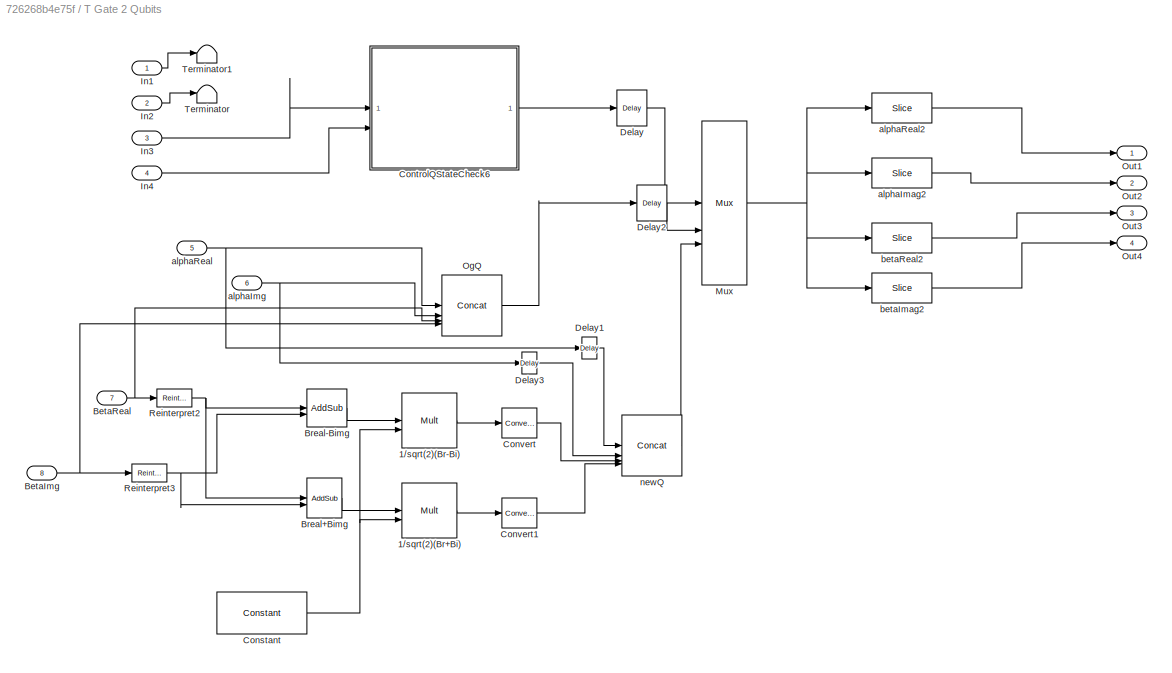
BLOCK [SubSystem] T Gate 2 Qubits
BLOCK [Reference] T Gate 2 Qubits/1//sqrt(2)(Br+Bi)  REF=hdlBasic/Mult
  SourceBlock = hdlBasic/Mult
  SourceType = Multiplier Block
BLOCK [Reference] T Gate 2 Qubits/1//sqrt(2)(Br-Bi)  REF=hdlBasic/Mult
  SourceBlock = hdlBasic/Mult
  SourceType = Multiplier Block
BLOCK [Inport] T Gate 2 Qubits/BetaImg
  Port = 8
BLOCK [Inport] T Gate 2 Qubits/BetaReal
  Port = 7
BLOCK [Reference] T Gate 2 Qubits/Breal+Bimg  REF=hdlBasic/AddSub
  SourceBlock = hdlBasic/AddSub
  SourceType = Adder/Subtracter Block
BLOCK [Reference] T Gate 2 Qubits/Breal-Bimg  REF=hdlBasic/AddSub
  SourceBlock = hdlBasic/AddSub
  SourceType = Adder/Subtracter Block
BLOCK [Reference] T Gate 2 Qubits/Constant  REF=hdlBasic/Constant
  SourceBlock = hdlBasic/Constant
  SourceType = Constant Block Block
BLOCK [SubSystem] T Gate 2 Qubits/ControlQStateCheck6
BLOCK [Reference] T Gate 2 Qubits/ControlQStateCheck6/BetaI=0?  REF=hdlBasic/Relational
  SourceBlock = hdlBasic/Relational
  SourceType = Arithmetic Relational Operator Block
BLOCK [Reference] T Gate 2 Qubits/ControlQStateCheck6/BetaR=1?  REF=hdlBasic/Relational
  SourceBlock = hdlBasic/Relational
  SourceType = Arithmetic Relational Operator Block
BLOCK [Reference] T Gate 2 Qubits/ControlQStateCheck6/Constant  REF=hdlBasic/Constant
  SourceBlock = hdlBasic/Constant
  SourceType = Constant Block Block
BLOCK [Reference] T Gate 2 Qubits/ControlQStateCheck6/Constant1  REF=hdlBasic/Constant
  SourceBlock = hdlBasic/Constant
  SourceType = Constant Block Block
BLOCK [Reference] T Gate 2 Qubits/ControlQStateCheck6/Delay  REF=hdlBasic/Delay
  SourceBlock = hdlBasic/Delay
  SourceType = Delay Block
BLOCK [Reference] T Gate 2 Qubits/ControlQStateCheck6/Delay1  REF=hdlBasic/Delay
  SourceBlock = hdlBasic/Delay
  SourceType = Delay Block
BLOCK [Inport] T Gate 2 Qubits/ControlQStateCheck6/In1
BLOCK [Inport] T Gate 2 Qubits/ControlQStateCheck6/In2
  Port = 2
BLOCK [Reference] T Gate 2 Qubits/ControlQStateCheck6/Logical  REF=hdlBasic/Logical
  SourceBlock = hdlBasic/Logical
  SourceType = Logical Block Block
BLOCK [Outport] T Gate 2 Qubits/ControlQStateCheck6/Out1
BLOCK [Reference] T Gate 2 Qubits/Convert  REF=hdlBasic/Convert
  SourceBlock = hdlBasic/Convert
  SourceType = Type Converter Block
BLOCK [Reference] T Gate 2 Qubits/Convert1  REF=hdlBasic/Convert
  SourceBlock = hdlBasic/Convert
  SourceType = Type Converter Block
BLOCK [Reference] T Gate 2 Qubits/Delay  REF=hdlBasic/Delay
  SourceBlock = hdlBasic/Delay
  SourceType = Delay Block
BLOCK [Reference] T Gate 2 Qubits/Delay1  REF=hdlBasic/Delay
  SourceBlock = hdlBasic/Delay
  SourceType = Delay Block
BLOCK [Reference] T Gate 2 Qubits/Delay2  REF=hdlBasic/Delay
  SourceBlock = hdlBasic/Delay
  SourceType = Delay Block
BLOCK [Reference] T Gate 2 Qubits/Delay3  REF=hdlBasic/Delay
  SourceBlock = hdlBasic/Delay
  SourceType = Delay Block
BLOCK [Inport] T Gate 2 Qubits/In1
BLOCK [Inport] T Gate 2 Qubits/In2
  Port = 2
BLOCK [Inport] T Gate 2 Qubits/In3
  Port = 3
BLOCK [Inport] T Gate 2 Qubits/In4
  Port = 4
BLOCK [Reference] T Gate 2 Qubits/Mux  REF=hdlBasic/Mux
  SourceBlock = hdlBasic/Mux
  SourceType = Bus Multiplexer Block
BLOCK [Reference] T Gate 2 Qubits/OgQ  REF=hdlBasic/Concat
  SourceBlock = hdlBasic/Concat
  SourceType = Bus Concatenator Block
BLOCK [Outport] T Gate 2 Qubits/Out1
BLOCK [Outport] T Gate 2 Qubits/Out2
  Port = 2
BLOCK [Outport] T Gate 2 Qubits/Out3
  Port = 3
BLOCK [Outport] T Gate 2 Qubits/Out4
  Port = 4
BLOCK [Reference] T Gate 2 Qubits/Reinterpret2  REF=hdlBasic/Reinterpret
  SourceBlock = hdlBasic/Reinterpret
  SourceType = Type Reinterpreter Block
BLOCK [Reference] T Gate 2 Qubits/Reinterpret3  REF=hdlBasic/Reinterpret
  SourceBlock = hdlBasic/Reinterpret
  SourceType = Type Reinterpreter Block
BLOCK [Terminator] T Gate 2 Qubits/Terminator
BLOCK [Terminator] T Gate 2 Qubits/Terminator1
BLOCK [Reference] T Gate 2 Qubits/alphaImag2  REF=hdlBasic/Slice
  SourceBlock = hdlBasic/Slice
  SourceType = Bit Slice Extractor Block
BLOCK [Inport] T Gate 2 Qubits/alphaImg
  Port = 6
BLOCK [Inport] T Gate 2 Qubits/alphaReal
  Port = 5
BLOCK [Reference] T Gate 2 Qubits/alphaReal2  REF=hdlBasic/Slice
  SourceBlock = hdlBasic/Slice
  SourceType = Bit Slice Extractor Block
BLOCK [Reference] T Gate 2 Qubits/betaImag2  REF=hdlBasic/Slice
  SourceBlock = hdlBasic/Slice
  SourceType = Bit Slice Extractor Block
BLOCK [Reference] T Gate 2 Qubits/betaReal2  REF=hdlBasic/Slice
  SourceBlock = hdlBasic/Slice
  SourceType = Bit Slice Extractor Block
BLOCK [Reference] T Gate 2 Qubits/newQ  REF=hdlBasic/Concat
  SourceBlock = hdlBasic/Concat
  SourceType = Bus Concatenator Block
BLOCK [Reference] Vitis Model Composer Hub  REF=vmcUtilities/Vitis Model Composer Hub
  SourceBlock = vmcUtilities/Vitis Model Composer Hub
  SourceType = VMC Hub
  Tag = genX
  UserDataPersistent = on
BLOCK [Reference] newQ2  REF=hdlBasic/Concat
  SourceBlock = hdlBasic/Concat
  SourceType = Bus Concatenator Block
LINE Constant1:1 -> Gateway In1:1
LINE Constant2:1 -> Gateway In2:1
LINE Constant:1 -> Gateway In:1
NET Delay10:1 -> Hadamard Gate2:2, S Gate 2 Qubits1:2, T Gate 2 Qubits:2
NET Delay11:1 -> Hadamard Gate2:3, S Gate 2 Qubits1:3, T Gate 2 Qubits:3
NET Delay12:1 -> Hadamard Gate2:4, S Gate 2 Qubits1:4, T Gate 2 Qubits:4
LINE Delay13:1 -> Swap Gate:5
LINE Delay14:1 -> Swap Gate:6
LINE Delay15:1 -> Swap Gate:7
LINE Delay16:1 -> Swap Gate:8
LINE Delay17:1 -> Gateway Out:1
LINE Delay18:1 -> Gateway Out2:1
LINE Delay19:1 -> Gateway Out1:1
NET Delay1:1 -> Hadamard Gate1:1, S Gate 2 Qubits:1
LINE Delay20:1 -> S Gate 2 Qubits1:5
LINE Delay21:1 -> S Gate 2 Qubits1:6
LINE Delay22:1 -> S Gate 2 Qubits1:7
LINE Delay23:1 -> S Gate 2 Qubits1:8
NET Delay2:1 -> Hadamard Gate1:2, S Gate 2 Qubits:2
NET Delay3:1 -> Hadamard Gate1:3, S Gate 2 Qubits:3
NET Delay4:1 -> Hadamard Gate1:4, S Gate 2 Qubits:4
LINE Delay5:1 -> newQ2:1
LINE Delay6:1 -> newQ2:2
LINE Delay7:1 -> newQ2:3
LINE Delay8:1 -> newQ2:4
NET Delay9:1 -> Hadamard Gate2:1, S Gate 2 Qubits1:1, T Gate 2 Qubits:1
LINE Gateway In1:1 -> Qubit2:1
LINE Gateway In2:1 -> Qubit3:1
LINE Gateway In:1 -> Qubit1:1
LINE Gateway Out1:1 -> Display2:1
LINE Gateway Out2:1 -> Display1:1
LINE Gateway Out:1 -> Display:1
NET Hadamard Gate/1//sqrt(2):1 -> Hadamard Gate/Mult1:2, Hadamard Gate/Mult2:2, Hadamard Gate/Mult3:2, Hadamard Gate/Mult:2
LINE Hadamard Gate/AlphaI+BetaI:1 -> Hadamard Gate/Mult1:1
LINE Hadamard Gate/AlphaI-BetaI:1 -> Hadamard Gate/Mult3:1
LINE Hadamard Gate/AlphaR+BetaR:1 -> Hadamard Gate/Mult:1
LINE Hadamard Gate/AlphaR-BetaR:1 -> Hadamard Gate/Mult2:1
LINE Hadamard Gate/BetaImg:1 -> Hadamard Gate/Reinterpret7:1
LINE Hadamard Gate/BetaReal:1 -> Hadamard Gate/Reinterpret6:1
LINE Hadamard Gate/Mult1:1 -> Hadamard Gate/Reinterpret1:1
LINE Hadamard Gate/Mult2:1 -> Hadamard Gate/Reinterpret2:1
LINE Hadamard Gate/Mult3:1 -> Hadamard Gate/Reinterpret3:1
LINE Hadamard Gate/Mult:1 -> Hadamard Gate/Reinterpret:1
LINE Hadamard Gate/Reinterpret1:1 -> Hadamard Gate/Out2:1
LINE Hadamard Gate/Reinterpret2:1 -> Hadamard Gate/Out3:1
LINE Hadamard Gate/Reinterpret3:1 -> Hadamard Gate/Out4:1
NET Hadamard Gate/Reinterpret4:1 -> Hadamard Gate/AlphaR+BetaR:1, Hadamard Gate/AlphaR-BetaR:1
NET Hadamard Gate/Reinterpret5:1 -> Hadamard Gate/AlphaI+BetaI:1, Hadamard Gate/AlphaI-BetaI:1
NET Hadamard Gate/Reinterpret6:1 -> Hadamard Gate/AlphaR+BetaR:2, Hadamard Gate/AlphaR-BetaR:2
NET Hadamard Gate/Reinterpret7:1 -> Hadamard Gate/AlphaI+BetaI:2, Hadamard Gate/AlphaI-BetaI:2
LINE Hadamard Gate/Reinterpret:1 -> Hadamard Gate/Out1:1
LINE Hadamard Gate/alphaImg:1 -> Hadamard Gate/Reinterpret5:1
LINE Hadamard Gate/alphaReal:1 -> Hadamard Gate/Reinterpret4:1
NET Hadamard Gate1/1//sqrt(2):1 -> Hadamard Gate1/Mult1:2, Hadamard Gate1/Mult2:2, Hadamard Gate1/Mult3:2, Hadamard Gate1/Mult:2
LINE Hadamard Gate1/AlphaI+BetaI:1 -> Hadamard Gate1/Mult1:1
LINE Hadamard Gate1/AlphaI-BetaI:1 -> Hadamard Gate1/Mult3:1
LINE Hadamard Gate1/AlphaR+BetaR:1 -> Hadamard Gate1/Mult:1
LINE Hadamard Gate1/AlphaR-BetaR:1 -> Hadamard Gate1/Mult2:1
LINE Hadamard Gate1/BetaImg:1 -> Hadamard Gate1/Reinterpret7:1
LINE Hadamard Gate1/BetaReal:1 -> Hadamard Gate1/Reinterpret6:1
LINE Hadamard Gate1/Mult1:1 -> Hadamard Gate1/Reinterpret1:1
LINE Hadamard Gate1/Mult2:1 -> Hadamard Gate1/Reinterpret2:1
LINE Hadamard Gate1/Mult3:1 -> Hadamard Gate1/Reinterpret3:1
LINE Hadamard Gate1/Mult:1 -> Hadamard Gate1/Reinterpret:1
LINE Hadamard Gate1/Reinterpret1:1 -> Hadamard Gate1/Out2:1
LINE Hadamard Gate1/Reinterpret2:1 -> Hadamard Gate1/Out3:1
LINE Hadamard Gate1/Reinterpret3:1 -> Hadamard Gate1/Out4:1
NET Hadamard Gate1/Reinterpret4:1 -> Hadamard Gate1/AlphaR+BetaR:1, Hadamard Gate1/AlphaR-BetaR:1
NET Hadamard Gate1/Reinterpret5:1 -> Hadamard Gate1/AlphaI+BetaI:1, Hadamard Gate1/AlphaI-BetaI:1
NET Hadamard Gate1/Reinterpret6:1 -> Hadamard Gate1/AlphaR+BetaR:2, Hadamard Gate1/AlphaR-BetaR:2
NET Hadamard Gate1/Reinterpret7:1 -> Hadamard Gate1/AlphaI+BetaI:2, Hadamard Gate1/AlphaI-BetaI:2
LINE Hadamard Gate1/Reinterpret:1 -> Hadamard Gate1/Out1:1
LINE Hadamard Gate1/alphaImg:1 -> Hadamard Gate1/Reinterpret5:1
LINE Hadamard Gate1/alphaReal:1 -> Hadamard Gate1/Reinterpret4:1
LINE Hadamard Gate1:1 -> Delay20:1
LINE Hadamard Gate1:2 -> Delay21:1
LINE Hadamard Gate1:3 -> Delay22:1
LINE Hadamard Gate1:4 -> Delay23:1
NET Hadamard Gate2/1//sqrt(2):1 -> Hadamard Gate2/Mult1:2, Hadamard Gate2/Mult2:2, Hadamard Gate2/Mult3:2, Hadamard Gate2/Mult:2
LINE Hadamard Gate2/AlphaI+BetaI:1 -> Hadamard Gate2/Mult1:1
LINE Hadamard Gate2/AlphaI-BetaI:1 -> Hadamard Gate2/Mult3:1
LINE Hadamard Gate2/AlphaR+BetaR:1 -> Hadamard Gate2/Mult:1
LINE Hadamard Gate2/AlphaR-BetaR:1 -> Hadamard Gate2/Mult2:1
LINE Hadamard Gate2/BetaImg:1 -> Hadamard Gate2/Reinterpret7:1
LINE Hadamard Gate2/BetaReal:1 -> Hadamard Gate2/Reinterpret6:1
LINE Hadamard Gate2/Mult1:1 -> Hadamard Gate2/Reinterpret1:1
LINE Hadamard Gate2/Mult2:1 -> Hadamard Gate2/Reinterpret2:1
LINE Hadamard Gate2/Mult3:1 -> Hadamard Gate2/Reinterpret3:1
LINE Hadamard Gate2/Mult:1 -> Hadamard Gate2/Reinterpret:1
LINE Hadamard Gate2/Reinterpret1:1 -> Hadamard Gate2/Out2:1
LINE Hadamard Gate2/Reinterpret2:1 -> Hadamard Gate2/Out3:1
LINE Hadamard Gate2/Reinterpret3:1 -> Hadamard Gate2/Out4:1
NET Hadamard Gate2/Reinterpret4:1 -> Hadamard Gate2/AlphaR+BetaR:1, Hadamard Gate2/AlphaR-BetaR:1
NET Hadamard Gate2/Reinterpret5:1 -> Hadamard Gate2/AlphaI+BetaI:1, Hadamard Gate2/AlphaI-BetaI:1
NET Hadamard Gate2/Reinterpret6:1 -> Hadamard Gate2/AlphaR+BetaR:2, Hadamard Gate2/AlphaR-BetaR:2
NET Hadamard Gate2/Reinterpret7:1 -> Hadamard Gate2/AlphaI+BetaI:2, Hadamard Gate2/AlphaI-BetaI:2
LINE Hadamard Gate2/Reinterpret:1 -> Hadamard Gate2/Out1:1
LINE Hadamard Gate2/alphaImg:1 -> Hadamard Gate2/Reinterpret5:1
LINE Hadamard Gate2/alphaReal:1 -> Hadamard Gate2/Reinterpret4:1
LINE Hadamard Gate2:1 -> Delay13:1
LINE Hadamard Gate2:2 -> Delay14:1
LINE Hadamard Gate2:3 -> Delay15:1
LINE Hadamard Gate2:4 -> Delay16:1
LINE Hadamard Gate:1 -> S Gate 2 Qubits:5
LINE Hadamard Gate:2 -> S Gate 2 Qubits:6
LINE Hadamard Gate:3 -> S Gate 2 Qubits:7
LINE Hadamard Gate:4 -> S Gate 2 Qubits:8
LINE Qubit1/Constant:1 -> Qubit1/Relational:1
LINE Qubit1/Relational:1 -> Qubit1/Subsystem:1
LINE Qubit1/Subsystem/Delay5:1 -> Qubit1/Subsystem/Mux:1
LINE Qubit1/Subsystem/In1:1 -> Qubit1/Subsystem/Delay5:1
LINE Qubit1/Subsystem/Is0/Concat:1 -> Qubit1/Subsystem/Is0/Delay5:1
LINE Qubit1/Subsystem/Is0/Constant1:1 -> Qubit1/Subsystem/Is0/Concat:2
LINE Qubit1/Subsystem/Is0/Constant2:1 -> Qubit1/Subsystem/Is0/Concat:3
LINE Qubit1/Subsystem/Is0/Constant3:1 -> Qubit1/Subsystem/Is0/Concat:4
LINE Qubit1/Subsystem/Is0/Constant:1 -> Qubit1/Subsystem/Is0/Concat:1
LINE Qubit1/Subsystem/Is0/Delay5:1 -> Qubit1/Subsystem/Is0/Out1:1
LINE Qubit1/Subsystem/Is0:1 -> Qubit1/Subsystem/Mux:3
LINE Qubit1/Subsystem/Is1/Concat:1 -> Qubit1/Subsystem/Is1/Delay5:1
LINE Qubit1/Subsystem/Is1/Constant1:1 -> Qubit1/Subsystem/Is1/Concat:2
LINE Qubit1/Subsystem/Is1/Constant2:1 -> Qubit1/Subsystem/Is1/Concat:3
LINE Qubit1/Subsystem/Is1/Constant3:1 -> Qubit1/Subsystem/Is1/Concat:4
LINE Qubit1/Subsystem/Is1/Constant:1 -> Qubit1/Subsystem/Is1/Concat:1
LINE Qubit1/Subsystem/Is1/Delay5:1 -> Qubit1/Subsystem/Is1/Out1:1
LINE Qubit1/Subsystem/Is1:1 -> Qubit1/Subsystem/Mux:2
LINE Qubit1/Subsystem/Mux:1 -> Qubit1/Subsystem/Out1:1
NET Qubit1/Subsystem:1 -> Qubit1/alphaImag2:1, Qubit1/alphaReal2:1, Qubit1/betaImag2:1, Qubit1/betaReal2:1
LINE Qubit1/alphaImag2:1 -> Qubit1/alphaImg:1
LINE Qubit1/alphaReal2:1 -> Qubit1/alphaReal:1
LINE Qubit1/betaImag2:1 -> Qubit1/BetaImg:1
LINE Qubit1/betaReal2:1 -> Qubit1/BetaReal:1
LINE Qubit1/tdata_in2:1 -> Qubit1/Relational:2
LINE Qubit1:1 -> Hadamard Gate:1
LINE Qubit1:2 -> Hadamard Gate:2
LINE Qubit1:3 -> Hadamard Gate:3
LINE Qubit1:4 -> Hadamard Gate:4
LINE Qubit2/Constant:1 -> Qubit2/Relational:1
LINE Qubit2/Relational:1 -> Qubit2/Subsystem:1
LINE Qubit2/Subsystem/Delay1:1 -> Qubit2/Subsystem/Mux:2
LINE Qubit2/Subsystem/Delay2:1 -> Qubit2/Subsystem/Mux:3
LINE Qubit2/Subsystem/Delay5:1 -> Qubit2/Subsystem/Mux:1
LINE Qubit2/Subsystem/In1:1 -> Qubit2/Subsystem/Delay5:1
LINE Qubit2/Subsystem/Is0/Concat:1 -> Qubit2/Subsystem/Is0/Out1:1
LINE Qubit2/Subsystem/Is0/Constant1:1 -> Qubit2/Subsystem/Is0/Concat:2
LINE Qubit2/Subsystem/Is0/Constant2:1 -> Qubit2/Subsystem/Is0/Concat:3
LINE Qubit2/Subsystem/Is0/Constant3:1 -> Qubit2/Subsystem/Is0/Concat:4
LINE Qubit2/Subsystem/Is0/Constant:1 -> Qubit2/Subsystem/Is0/Concat:1
LINE Qubit2/Subsystem/Is0:1 -> Qubit2/Subsystem/Delay2:1
LINE Qubit2/Subsystem/Is1/Concat:1 -> Qubit2/Subsystem/Is1/Out1:1
LINE Qubit2/Subsystem/Is1/Constant1:1 -> Qubit2/Subsystem/Is1/Concat:2
LINE Qubit2/Subsystem/Is1/Constant2:1 -> Qubit2/Subsystem/Is1/Concat:3
LINE Qubit2/Subsystem/Is1/Constant3:1 -> Qubit2/Subsystem/Is1/Concat:4
LINE Qubit2/Subsystem/Is1/Constant:1 -> Qubit2/Subsystem/Is1/Concat:1
LINE Qubit2/Subsystem/Is1:1 -> Qubit2/Subsystem/Delay1:1
LINE Qubit2/Subsystem/Mux:1 -> Qubit2/Subsystem/Out1:1
NET Qubit2/Subsystem:1 -> Qubit2/alphaImag2:1, Qubit2/alphaReal2:1, Qubit2/betaImag2:1, Qubit2/betaReal2:1
LINE Qubit2/alphaImag2:1 -> Qubit2/alphaImg:1
LINE Qubit2/alphaReal2:1 -> Qubit2/alphaReal:1
LINE Qubit2/betaImag2:1 -> Qubit2/BetaImg:1
LINE Qubit2/betaReal2:1 -> Qubit2/BetaReal:1
LINE Qubit2/tdata_in2:1 -> Qubit2/Relational:2
LINE Qubit2:1 -> Delay1:1
LINE Qubit2:2 -> Delay2:1
LINE Qubit2:3 -> Delay3:1
LINE Qubit2:4 -> Delay4:1
LINE Qubit3/Constant:1 -> Qubit3/Relational:1
LINE Qubit3/Relational:1 -> Qubit3/Subsystem:1
LINE Qubit3/Subsystem/Delay1:1 -> Qubit3/Subsystem/Mux:2
LINE Qubit3/Subsystem/Delay2:1 -> Qubit3/Subsystem/Mux:3
LINE Qubit3/Subsystem/Delay5:1 -> Qubit3/Subsystem/Mux:1
LINE Qubit3/Subsystem/In1:1 -> Qubit3/Subsystem/Delay5:1
LINE Qubit3/Subsystem/Is0/Concat:1 -> Qubit3/Subsystem/Is0/Out1:1
LINE Qubit3/Subsystem/Is0/Constant1:1 -> Qubit3/Subsystem/Is0/Concat:2
LINE Qubit3/Subsystem/Is0/Constant2:1 -> Qubit3/Subsystem/Is0/Concat:3
LINE Qubit3/Subsystem/Is0/Constant3:1 -> Qubit3/Subsystem/Is0/Concat:4
LINE Qubit3/Subsystem/Is0/Constant:1 -> Qubit3/Subsystem/Is0/Concat:1
LINE Qubit3/Subsystem/Is0:1 -> Qubit3/Subsystem/Delay2:1
LINE Qubit3/Subsystem/Is1/Concat:1 -> Qubit3/Subsystem/Is1/Out1:1
LINE Qubit3/Subsystem/Is1/Constant1:1 -> Qubit3/Subsystem/Is1/Concat:2
LINE Qubit3/Subsystem/Is1/Constant2:1 -> Qubit3/Subsystem/Is1/Concat:3
LINE Qubit3/Subsystem/Is1/Constant3:1 -> Qubit3/Subsystem/Is1/Concat:4
LINE Qubit3/Subsystem/Is1/Constant:1 -> Qubit3/Subsystem/Is1/Concat:1
LINE Qubit3/Subsystem/Is1:1 -> Qubit3/Subsystem/Delay1:1
LINE Qubit3/Subsystem/Mux:1 -> Qubit3/Subsystem/Out1:1
NET Qubit3/Subsystem:1 -> Qubit3/alphaImag2:1, Qubit3/alphaReal2:1, Qubit3/betaImag2:1, Qubit3/betaReal2:1
LINE Qubit3/alphaImag2:1 -> Qubit3/alphaImg:1
LINE Qubit3/alphaReal2:1 -> Qubit3/alphaReal:1
LINE Qubit3/betaImag2:1 -> Qubit3/BetaImg:1
LINE Qubit3/betaReal2:1 -> Qubit3/BetaReal:1
LINE Qubit3/tdata_in2:1 -> Qubit3/Relational:2
LINE Qubit3:1 -> Delay9:1
LINE Qubit3:2 -> Delay10:1
LINE Qubit3:3 -> Delay11:1
LINE Qubit3:4 -> Delay12:1
NET S Gate 2 Qubits/BetaImg:1 -> S Gate 2 Qubits/Delay1:1, S Gate 2 Qubits/OgQ:4
NET S Gate 2 Qubits/BetaReal:1 -> S Gate 2 Qubits/Delay3:1, S Gate 2 Qubits/OgQ:3
LINE S Gate 2 Qubits/ControlQStateCheck6/BetaI=0?:1 -> S Gate 2 Qubits/ControlQStateCheck6/Logical:2
LINE S Gate 2 Qubits/ControlQStateCheck6/BetaR=1?:1 -> S Gate 2 Qubits/ControlQStateCheck6/Logical:1
LINE S Gate 2 Qubits/ControlQStateCheck6/Constant1:1 -> S Gate 2 Qubits/ControlQStateCheck6/BetaR=1?:2
LINE S Gate 2 Qubits/ControlQStateCheck6/Constant:1 -> S Gate 2 Qubits/ControlQStateCheck6/BetaI=0?:2
LINE S Gate 2 Qubits/ControlQStateCheck6/Delay1:1 -> S Gate 2 Qubits/ControlQStateCheck6/BetaI=0?:1
LINE S Gate 2 Qubits/ControlQStateCheck6/Delay:1 -> S Gate 2 Qubits/ControlQStateCheck6/BetaR=1?:1
LINE S Gate 2 Qubits/ControlQStateCheck6/In1:1 -> S Gate 2 Qubits/ControlQStateCheck6/Delay:1
LINE S Gate 2 Qubits/ControlQStateCheck6/In2:1 -> S Gate 2 Qubits/ControlQStateCheck6/Delay1:1
LINE S Gate 2 Qubits/ControlQStateCheck6/Logical:1 -> S Gate 2 Qubits/ControlQStateCheck6/Out1:1
LINE S Gate 2 Qubits/ControlQStateCheck6:1 -> S Gate 2 Qubits/Delay6:1
LINE S Gate 2 Qubits/Convert:1 -> S Gate 2 Qubits/newQ:3
LINE S Gate 2 Qubits/Delay1:1 -> S Gate 2 Qubits/Reinterpret6:1
LINE S Gate 2 Qubits/Delay2:1 -> S Gate 2 Qubits/Mux:2
LINE S Gate 2 Qubits/Delay3:1 -> S Gate 2 Qubits/newQ:4
LINE S Gate 2 Qubits/Delay4:1 -> S Gate 2 Qubits/newQ:2
LINE S Gate 2 Qubits/Delay5:1 -> S Gate 2 Qubits/newQ:1
LINE S Gate 2 Qubits/Delay6:1 -> S Gate 2 Qubits/Mux:1
LINE S Gate 2 Qubits/In1:1 -> S Gate 2 Qubits/Terminator1:1
LINE S Gate 2 Qubits/In2:1 -> S Gate 2 Qubits/Terminator:1
LINE S Gate 2 Qubits/In3:1 -> S Gate 2 Qubits/ControlQStateCheck6:1
LINE S Gate 2 Qubits/In4:1 -> S Gate 2 Qubits/ControlQStateCheck6:2
NET S Gate 2 Qubits/Mux:1 -> S Gate 2 Qubits/alphaImag2:1, S Gate 2 Qubits/alphaReal2:1, S Gate 2 Qubits/betaImag2:1, S Gate 2 Qubits/betaReal2:1
LINE S Gate 2 Qubits/Negate:1 -> S Gate 2 Qubits/Convert:1
LINE S Gate 2 Qubits/OgQ:1 -> S Gate 2 Qubits/Delay2:1
LINE S Gate 2 Qubits/Reinterpret6:1 -> S Gate 2 Qubits/Negate:1
LINE S Gate 2 Qubits/alphaImag2:1 -> S Gate 2 Qubits/Out2:1
NET S Gate 2 Qubits/alphaImg:1 -> S Gate 2 Qubits/Delay4:1, S Gate 2 Qubits/OgQ:2
LINE S Gate 2 Qubits/alphaReal2:1 -> S Gate 2 Qubits/Out1:1
NET S Gate 2 Qubits/alphaReal:1 -> S Gate 2 Qubits/Delay5:1, S Gate 2 Qubits/OgQ:1
LINE S Gate 2 Qubits/betaImag2:1 -> S Gate 2 Qubits/Out4:1
LINE S Gate 2 Qubits/betaReal2:1 -> S Gate 2 Qubits/Out3:1
LINE S Gate 2 Qubits/newQ:1 -> S Gate 2 Qubits/Mux:3
NET S Gate 2 Qubits1/BetaImg:1 -> S Gate 2 Qubits1/Delay1:1, S Gate 2 Qubits1/OgQ:4
NET S Gate 2 Qubits1/BetaReal:1 -> S Gate 2 Qubits1/Delay3:1, S Gate 2 Qubits1/OgQ:3
LINE S Gate 2 Qubits1/ControlQStateCheck6/BetaI=0?:1 -> S Gate 2 Qubits1/ControlQStateCheck6/Logical:2
LINE S Gate 2 Qubits1/ControlQStateCheck6/BetaR=1?:1 -> S Gate 2 Qubits1/ControlQStateCheck6/Logical:1
LINE S Gate 2 Qubits1/ControlQStateCheck6/Constant1:1 -> S Gate 2 Qubits1/ControlQStateCheck6/BetaR=1?:2
LINE S Gate 2 Qubits1/ControlQStateCheck6/Constant:1 -> S Gate 2 Qubits1/ControlQStateCheck6/BetaI=0?:2
LINE S Gate 2 Qubits1/ControlQStateCheck6/Delay1:1 -> S Gate 2 Qubits1/ControlQStateCheck6/BetaI=0?:1
LINE S Gate 2 Qubits1/ControlQStateCheck6/Delay:1 -> S Gate 2 Qubits1/ControlQStateCheck6/BetaR=1?:1
LINE S Gate 2 Qubits1/ControlQStateCheck6/In1:1 -> S Gate 2 Qubits1/ControlQStateCheck6/Delay:1
LINE S Gate 2 Qubits1/ControlQStateCheck6/In2:1 -> S Gate 2 Qubits1/ControlQStateCheck6/Delay1:1
LINE S Gate 2 Qubits1/ControlQStateCheck6/Logical:1 -> S Gate 2 Qubits1/ControlQStateCheck6/Out1:1
LINE S Gate 2 Qubits1/ControlQStateCheck6:1 -> S Gate 2 Qubits1/Delay6:1
LINE S Gate 2 Qubits1/Convert:1 -> S Gate 2 Qubits1/newQ:3
LINE S Gate 2 Qubits1/Delay1:1 -> S Gate 2 Qubits1/Reinterpret6:1
LINE S Gate 2 Qubits1/Delay2:1 -> S Gate 2 Qubits1/Mux:2
LINE S Gate 2 Qubits1/Delay3:1 -> S Gate 2 Qubits1/newQ:4
LINE S Gate 2 Qubits1/Delay4:1 -> S Gate 2 Qubits1/newQ:2
LINE S Gate 2 Qubits1/Delay5:1 -> S Gate 2 Qubits1/newQ:1
LINE S Gate 2 Qubits1/Delay6:1 -> S Gate 2 Qubits1/Mux:1
LINE S Gate 2 Qubits1/In1:1 -> S Gate 2 Qubits1/Terminator1:1
LINE S Gate 2 Qubits1/In2:1 -> S Gate 2 Qubits1/Terminator:1
LINE S Gate 2 Qubits1/In3:1 -> S Gate 2 Qubits1/ControlQStateCheck6:1
LINE S Gate 2 Qubits1/In4:1 -> S Gate 2 Qubits1/ControlQStateCheck6:2
NET S Gate 2 Qubits1/Mux:1 -> S Gate 2 Qubits1/alphaImag2:1, S Gate 2 Qubits1/alphaReal2:1, S Gate 2 Qubits1/betaImag2:1, S Gate 2 Qubits1/betaReal2:1
LINE S Gate 2 Qubits1/Negate:1 -> S Gate 2 Qubits1/Convert:1
LINE S Gate 2 Qubits1/OgQ:1 -> S Gate 2 Qubits1/Delay2:1
LINE S Gate 2 Qubits1/Reinterpret6:1 -> S Gate 2 Qubits1/Negate:1
LINE S Gate 2 Qubits1/alphaImag2:1 -> S Gate 2 Qubits1/Out2:1
NET S Gate 2 Qubits1/alphaImg:1 -> S Gate 2 Qubits1/Delay4:1, S Gate 2 Qubits1/OgQ:2
LINE S Gate 2 Qubits1/alphaReal2:1 -> S Gate 2 Qubits1/Out1:1
NET S Gate 2 Qubits1/alphaReal:1 -> S Gate 2 Qubits1/Delay5:1, S Gate 2 Qubits1/OgQ:1
LINE S Gate 2 Qubits1/betaImag2:1 -> S Gate 2 Qubits1/Out4:1
LINE S Gate 2 Qubits1/betaReal2:1 -> S Gate 2 Qubits1/Out3:1
LINE S Gate 2 Qubits1/newQ:1 -> S Gate 2 Qubits1/Mux:3
LINE S Gate 2 Qubits1:1 -> Delay5:1
LINE S Gate 2 Qubits1:2 -> Delay6:1
LINE S Gate 2 Qubits1:3 -> Delay7:1
LINE S Gate 2 Qubits1:4 -> Delay8:1
LINE S Gate 2 Qubits:1 -> T Gate 2 Qubits:5
LINE S Gate 2 Qubits:2 -> T Gate 2 Qubits:6
LINE S Gate 2 Qubits:3 -> T Gate 2 Qubits:7
LINE S Gate 2 Qubits:4 -> T Gate 2 Qubits:8
LINE Swap Gate/In1:1 -> Swap Gate/Reinterpret7:1
LINE Swap Gate/In2:1 -> Swap Gate/Reinterpret4:1
LINE Swap Gate/In3:1 -> Swap Gate/Reinterpret6:1
LINE Swap Gate/In4:1 -> Swap Gate/Reinterpret5:1
LINE Swap Gate/In5:1 -> Swap Gate/Reinterpret:1
LINE Swap Gate/In6:1 -> Swap Gate/Reinterpret1:1
LINE Swap Gate/In7:1 -> Swap Gate/Reinterpret2:1
LINE Swap Gate/In8:1 -> Swap Gate/Reinterpret3:1
LINE Swap Gate/Reinterpret1:1 -> Swap Gate/q2:2
LINE Swap Gate/Reinterpret2:1 -> Swap Gate/q2:3
LINE Swap Gate/Reinterpret3:1 -> Swap Gate/q2:4
LINE Swap Gate/Reinterpret4:1 -> Swap Gate/q1:2
LINE Swap Gate/Reinterpret5:1 -> Swap Gate/q1:4
LINE Swap Gate/Reinterpret6:1 -> Swap Gate/q1:3
LINE Swap Gate/Reinterpret7:1 -> Swap Gate/q1:1
LINE Swap Gate/Reinterpret:1 -> Swap Gate/q2:1
LINE Swap Gate/q1:1 -> Swap Gate/newQ3:1
LINE Swap Gate/q2:1 -> Swap Gate/newQ1:1
LINE Swap Gate:1 -> Delay17:1
LINE Swap Gate:2 -> Delay18:1
LINE T Gate 2 Qubits/1//sqrt(2)(Br+Bi):1 -> T Gate 2 Qubits/Convert1:1
LINE T Gate 2 Qubits/1//sqrt(2)(Br-Bi):1 -> T Gate 2 Qubits/Convert:1
NET T Gate 2 Qubits/BetaImg:1 -> T Gate 2 Qubits/OgQ:4, T Gate 2 Qubits/Reinterpret3:1
NET T Gate 2 Qubits/BetaReal:1 -> T Gate 2 Qubits/OgQ:3, T Gate 2 Qubits/Reinterpret2:1
LINE T Gate 2 Qubits/Breal+Bimg:1 -> T Gate 2 Qubits/1//sqrt(2)(Br+Bi):1
LINE T Gate 2 Qubits/Breal-Bimg:1 -> T Gate 2 Qubits/1//sqrt(2)(Br-Bi):1
NET T Gate 2 Qubits/Constant:1 -> T Gate 2 Qubits/1//sqrt(2)(Br+Bi):2, T Gate 2 Qubits/1//sqrt(2)(Br-Bi):2
LINE T Gate 2 Qubits/ControlQStateCheck6/BetaI=0?:1 -> T Gate 2 Qubits/ControlQStateCheck6/Logical:2
LINE T Gate 2 Qubits/ControlQStateCheck6/BetaR=1?:1 -> T Gate 2 Qubits/ControlQStateCheck6/Logical:1
LINE T Gate 2 Qubits/ControlQStateCheck6/Constant1:1 -> T Gate 2 Qubits/ControlQStateCheck6/BetaR=1?:2
LINE T Gate 2 Qubits/ControlQStateCheck6/Constant:1 -> T Gate 2 Qubits/ControlQStateCheck6/BetaI=0?:2
LINE T Gate 2 Qubits/ControlQStateCheck6/Delay1:1 -> T Gate 2 Qubits/ControlQStateCheck6/BetaI=0?:1
LINE T Gate 2 Qubits/ControlQStateCheck6/Delay:1 -> T Gate 2 Qubits/ControlQStateCheck6/BetaR=1?:1
LINE T Gate 2 Qubits/ControlQStateCheck6/In1:1 -> T Gate 2 Qubits/ControlQStateCheck6/Delay:1
LINE T Gate 2 Qubits/ControlQStateCheck6/In2:1 -> T Gate 2 Qubits/ControlQStateCheck6/Delay1:1
LINE T Gate 2 Qubits/ControlQStateCheck6/Logical:1 -> T Gate 2 Qubits/ControlQStateCheck6/Out1:1
LINE T Gate 2 Qubits/ControlQStateCheck6:1 -> T Gate 2 Qubits/Delay:1
LINE T Gate 2 Qubits/Convert1:1 -> T Gate 2 Qubits/newQ:4
LINE T Gate 2 Qubits/Convert:1 -> T Gate 2 Qubits/newQ:3
LINE T Gate 2 Qubits/Delay1:1 -> T Gate 2 Qubits/newQ:1
LINE T Gate 2 Qubits/Delay2:1 -> T Gate 2 Qubits/Mux:2
LINE T Gate 2 Qubits/Delay3:1 -> T Gate 2 Qubits/newQ:2
LINE T Gate 2 Qubits/Delay:1 -> T Gate 2 Qubits/Mux:1
LINE T Gate 2 Qubits/In1:1 -> T Gate 2 Qubits/Terminator1:1
LINE T Gate 2 Qubits/In2:1 -> T Gate 2 Qubits/Terminator:1
LINE T Gate 2 Qubits/In3:1 -> T Gate 2 Qubits/ControlQStateCheck6:1
LINE T Gate 2 Qubits/In4:1 -> T Gate 2 Qubits/ControlQStateCheck6:2
NET T Gate 2 Qubits/Mux:1 -> T Gate 2 Qubits/alphaImag2:1, T Gate 2 Qubits/alphaReal2:1, T Gate 2 Qubits/betaImag2:1, T Gate 2 Qubits/betaReal2:1
LINE T Gate 2 Qubits/OgQ:1 -> T Gate 2 Qubits/Delay2:1
NET T Gate 2 Qubits/Reinterpret2:1 -> T Gate 2 Qubits/Breal+Bimg:1, T Gate 2 Qubits/Breal-Bimg:1
NET T Gate 2 Qubits/Reinterpret3:1 -> T Gate 2 Qubits/Breal+Bimg:2, T Gate 2 Qubits/Breal-Bimg:2
LINE T Gate 2 Qubits/alphaImag2:1 -> T Gate 2 Qubits/Out2:1
NET T Gate 2 Qubits/alphaImg:1 -> T Gate 2 Qubits/Delay3:1, T Gate 2 Qubits/OgQ:2
LINE T Gate 2 Qubits/alphaReal2:1 -> T Gate 2 Qubits/Out1:1
NET T Gate 2 Qubits/alphaReal:1 -> T Gate 2 Qubits/Delay1:1, T Gate 2 Qubits/OgQ:1
LINE T Gate 2 Qubits/betaImag2:1 -> T Gate 2 Qubits/Out4:1
LINE T Gate 2 Qubits/betaReal2:1 -> T Gate 2 Qubits/Out3:1
LINE T Gate 2 Qubits/newQ:1 -> T Gate 2 Qubits/Mux:3
LINE T Gate 2 Qubits:1 -> Swap Gate:1
LINE T Gate 2 Qubits:2 -> Swap Gate:2
LINE T Gate 2 Qubits:3 -> Swap Gate:3
LINE T Gate 2 Qubits:4 -> Swap Gate:4
LINE newQ2:1 -> Delay19:1
note: NET lines group one-source signal fan-out (src -> all destinations, sorted); 1:1 wires keep LINE
